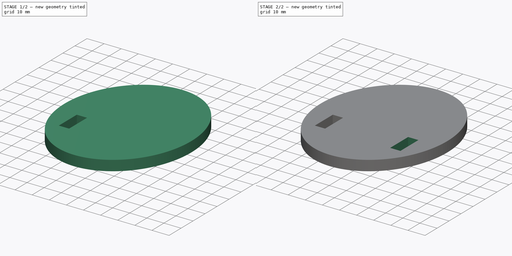
[diagram: build sequence overview — one tinted view per stage of 2, left to right]
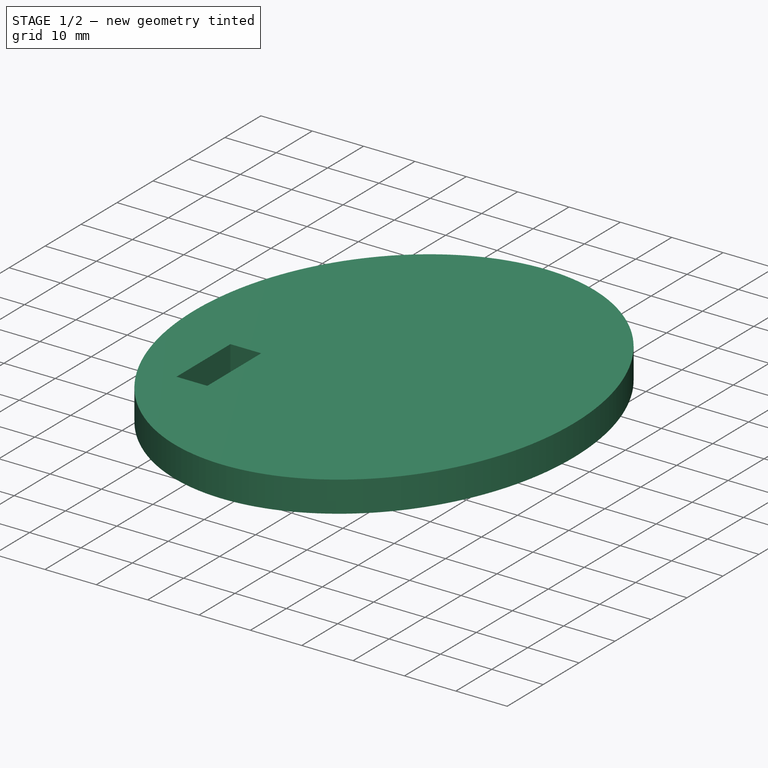
[diagram: stage 1 of 2 — iso view after this stage's code; geometry added in this stage tinted green]
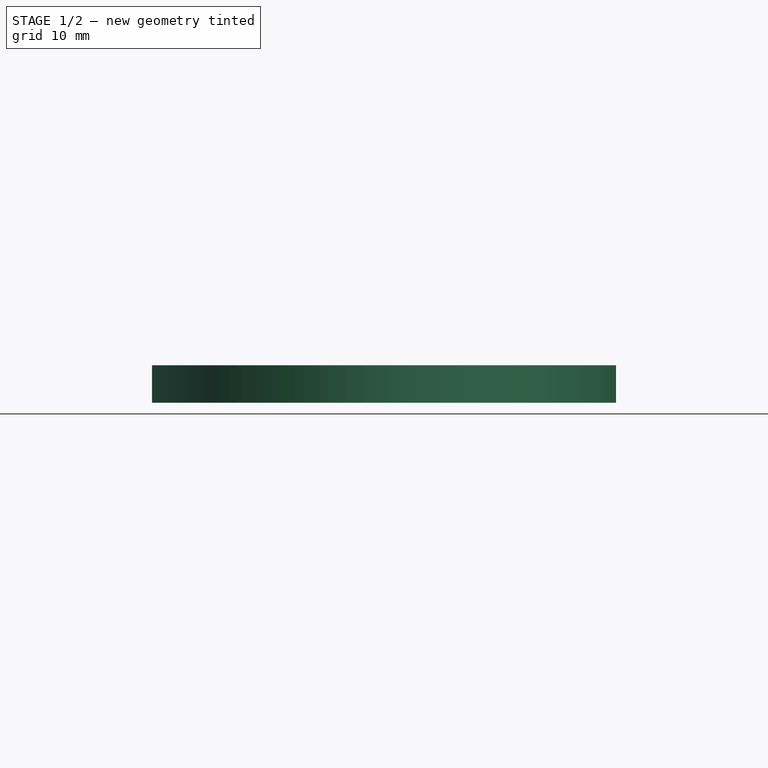
[diagram: stage 1 of 2 — front view after this stage's code; geometry added in this stage tinted green]
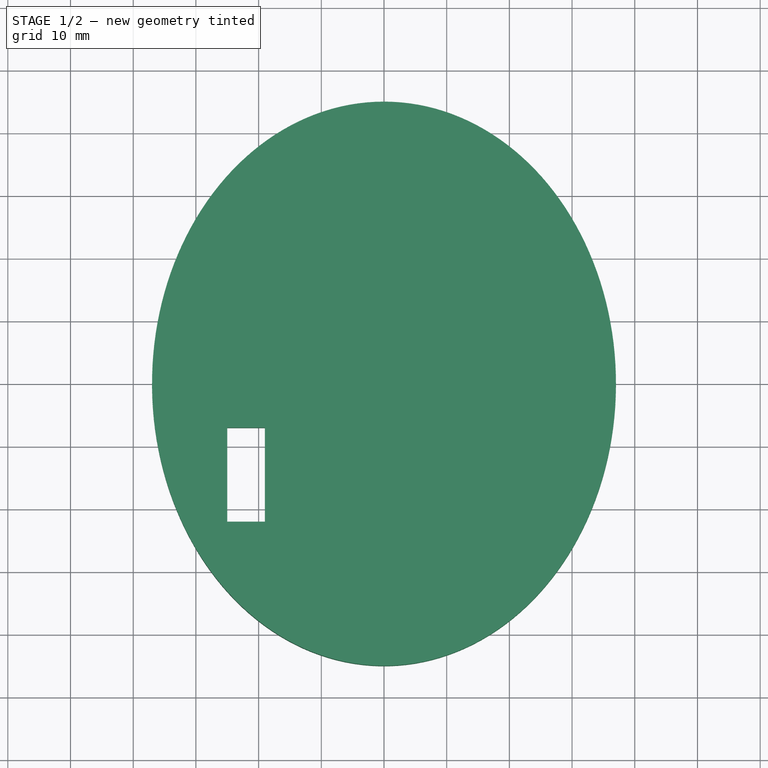
[diagram: stage 1 of 2 — top view after this stage's code; geometry added in this stage tinted green]
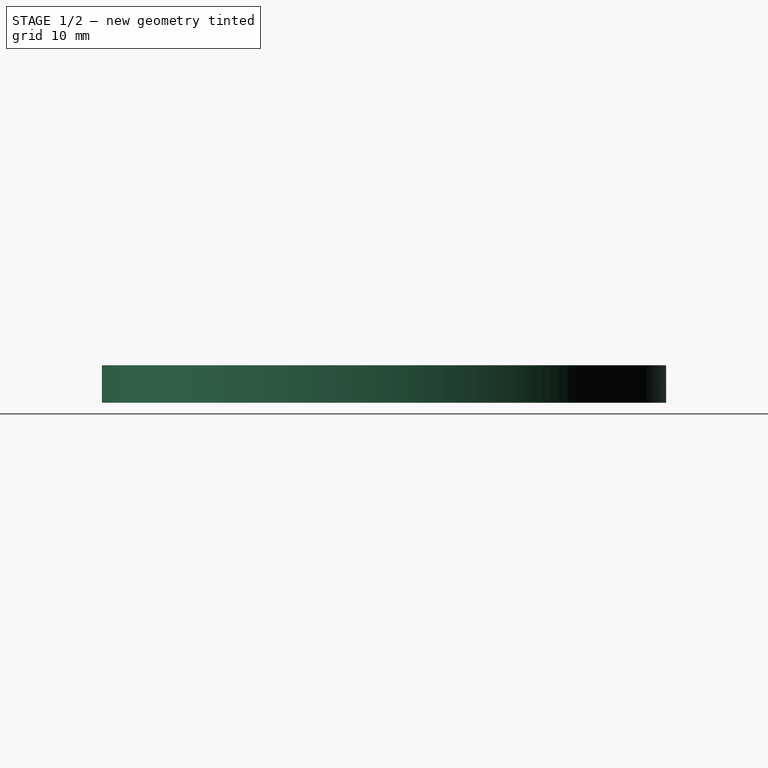
[diagram: stage 1 of 2 — right view after this stage's code; geometry added in this stage tinted green]
FCSTD DOCUMENT  (FreeCAD 0.19R24291 (Git))
Label: Base-Plate-Lidar
License: All rights reserved
LicenseURL: http://en.wikipedia.org/wiki/All_rights_reserved
objects: Sketcher::SketchObject×2, PartDesign::Pad×1, PartDesign::Pocket×1, PartDesign::Mirrored×1, PartDesign::Body×1
note: 8 computed .brp shape members not serialized (recipe doc carries the construction recipe); baked Part::Feature solids carry a one-line shape summary decoded from their .brp

FEATURE [Sketcher::SketchObject] Sketch
  FullyConstrained = true
  MapMode = 5
  Support = -> [XY_Plane]
  sketch-geometry (14):
    g0: LineSegment StartX=-50 StartY=-50 StartZ=0 EndX=50 EndY=-50 EndZ=0
    g1: LineSegment StartX=50 StartY=-50 StartZ=0 EndX=50 EndY=50 EndZ=0
    g2: LineSegment StartX=50 StartY=50 StartZ=0 EndX=-50 EndY=50 EndZ=0
    g3: LineSegment StartX=-50 StartY=50 StartZ=0 EndX=-50 EndY=-50 EndZ=0
    g4: LineSegment StartX=-50 StartY=50 StartZ=0 EndX=50 EndY=-50 EndZ=0
    g5: LineSegment StartX=-50 StartY=-50 StartZ=0 EndX=50 EndY=50 EndZ=0
    g6: LineSegment StartX=-40 StartY=50 StartZ=0 EndX=-40 EndY=-50 EndZ=0
    g7: LineSegment StartX=40 StartY=50 StartZ=0 EndX=40 EndY=-50 EndZ=0
    g8: Ellipse CenterX=0 CenterY=0 CenterZ=0 NormalX=0 NormalY=0 NormalZ=1 MajorRadius=45 MinorRadius=37 AngleXU=1.5708
    g9: LineSegment StartX=0 StartY=45 StartZ=0 EndX=0 EndY=-45 EndZ=0
    g10: LineSegment StartX=-37 StartY=0 StartZ=0 EndX=37 EndY=0 EndZ=0
    g11: GeomPoint X=0 Y=25.6125 Z=0
    g12: GeomPoint X=0 Y=-25.6125 Z=0
    g13: GeomPoint X=-40 Y=0 Z=0
  constraints (31):
    c: Coincident(g0,g1)
    c: Coincident(g1,g2)
    c: Coincident(g2,g3)
    c: Coincident(g3,g0)
    c: Horizontal(g0)
    c: Horizontal(g2)
    c: Vertical(g1)
    c: Vertical(g3)
    c: Coincident(g4,g2)
    c: Coincident(g4,g0)
    c: Coincident(g5,g0)
    c: Coincident(g5,g1)
    c: PointOnObject(g-1,g5)
    c: PointOnObject(g-1,g4)
    c: DistanceY(g1,g1) = 100
    c: DistanceX(g0,g0) = 100
    c: PointOnObject(g6,g2)
    c: PointOnObject(g6,g0)
    c: Vertical(g6)
    c: DistanceX(g2,g6) = 10
    c: Vertical(g7)
    c: DistanceX(g7,g1) = 10
    c: PointOnObject(g7,g2)
    c: PointOnObject(g7,g0)
    c: InternalAlignment(g9-g12 -> g8) x4
    c: Coincident(g8,g-1)
    c: PointOnObject(g13,g6)
    c: PointOnObject(g13,g-1)
    c: DistanceX(g13,g10) = 3
    c: PointOnObject(g10,g-1)
    c: DistanceY(g9,g6) = 5
FEATURE [PartDesign::Pad] Pad  label="Base"
  Direction = (1,1,1)
  Length = 6
  Length2 = 100
  Profile = -> Sketch
  Type = 0
FEATURE [Sketcher::SketchObject] Sketch001
  FullyConstrained = true
  MapMode = 5
  Placement = pos=(0,0,6) rot=(0,0,1;0rad)
  Support = -> [Pad]
  sketch-geometry (4):
    g0: LineSegment StartX=-25 StartY=-7 StartZ=0 EndX=-19 EndY=-7 EndZ=0
    g1: LineSegment StartX=-19 StartY=-7 StartZ=0 EndX=-19 EndY=-22 EndZ=0
    g2: LineSegment StartX=-19 StartY=-22 StartZ=0 EndX=-25 EndY=-22 EndZ=0
    g3: LineSegment StartX=-25 StartY=-22 StartZ=0 EndX=-25 EndY=-7 EndZ=0
  constraints (12):
    c: Coincident(g0,g1)
    c: Coincident(g1,g2)
    c: Coincident(g2,g3)
    c: Coincident(g3,g0)
    c: Horizontal(g0)
    c: Horizontal(g2)
    c: Vertical(g1)
    c: Vertical(g3)
    c: DistanceX(g2,g2) = 6
    c: DistanceY(g3,g3) = 15
    c: DistanceX(g0,g-1) = 19
    c: DistanceY(g0,g-1) = 7
FEATURE [PartDesign::Pocket] Pocket  label="Fixation-AX12"
  BaseFeature = -> Pad
  Length = 5
  Length2 = 100
  Profile = -> Sketch001
  Type = 1
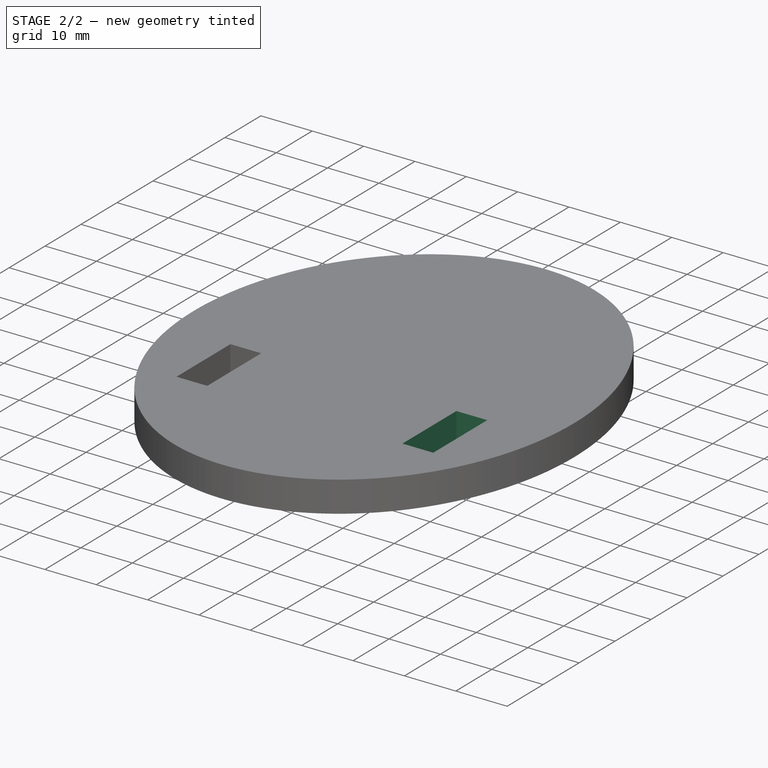
[diagram: stage 2 of 2 — iso view after this stage's code; geometry added in this stage tinted green]
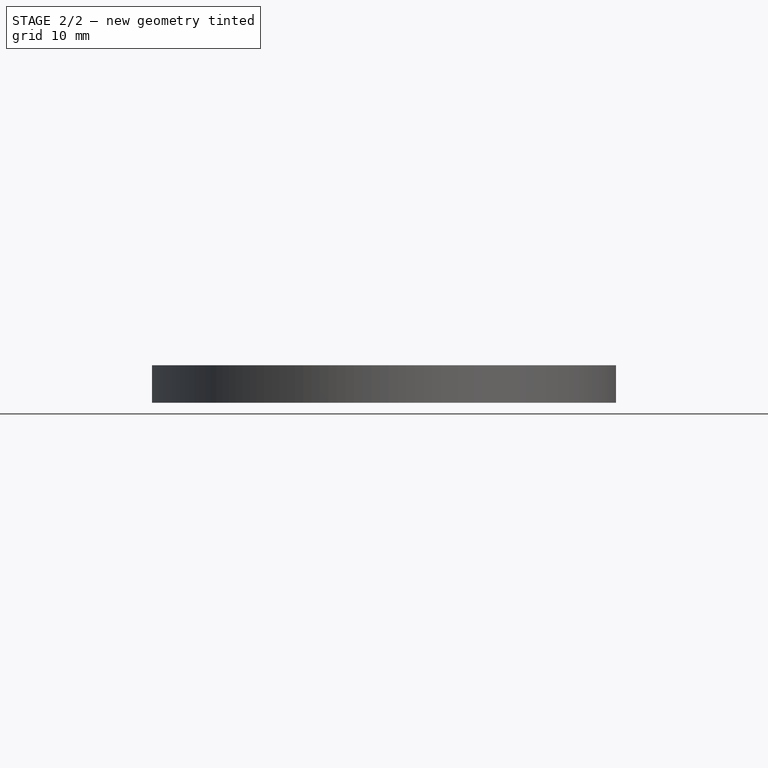
[diagram: stage 2 of 2 — front view after this stage's code; geometry added in this stage tinted green]
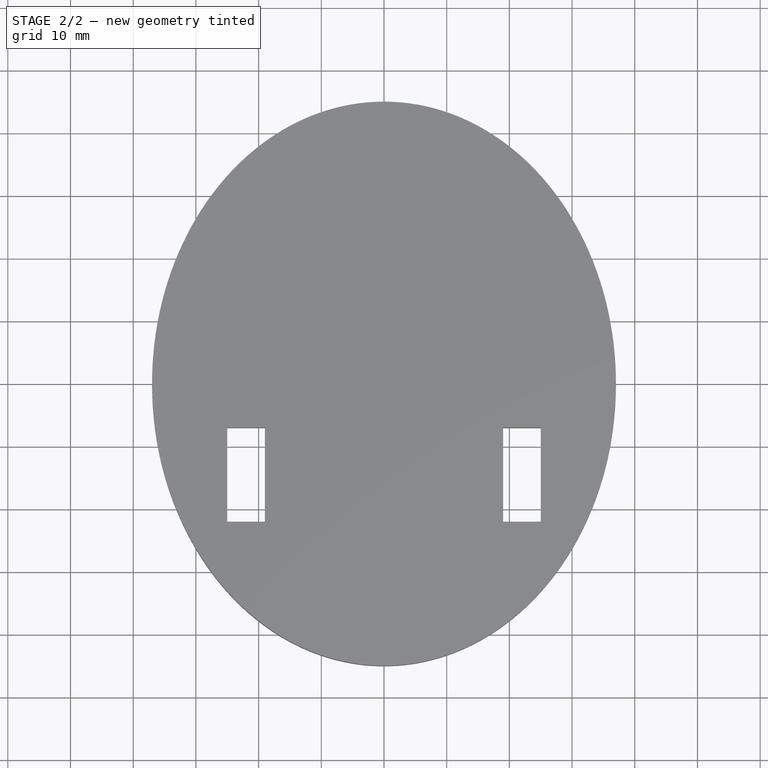
[diagram: stage 2 of 2 — top view after this stage's code; geometry added in this stage tinted green]
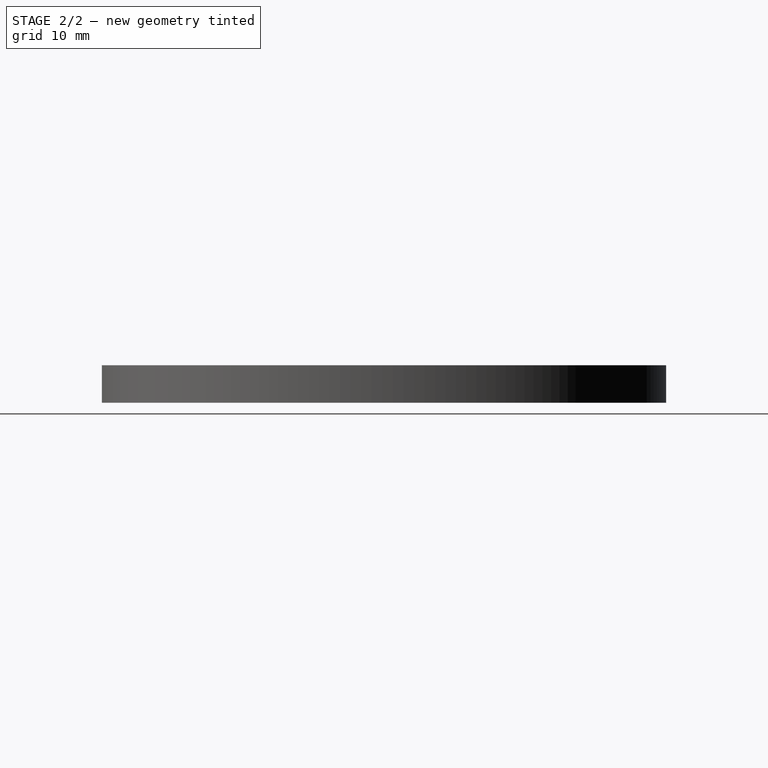
[diagram: stage 2 of 2 — right view after this stage's code; geometry added in this stage tinted green]
FEATURE [PartDesign::Mirrored] Mirrored  label="Fixation-AX12-2"
  BaseFeature = -> Pocket
  MirrorPlane = -> Sketch001 [V_Axis]
  Originals = -> [Pocket]
FEATURE [PartDesign::Body] Body
  Group = -> [Sketch,Pad,Sketch001,Pocket,Mirrored]
  Origin = -> Origin
  Tip = -> Mirrored
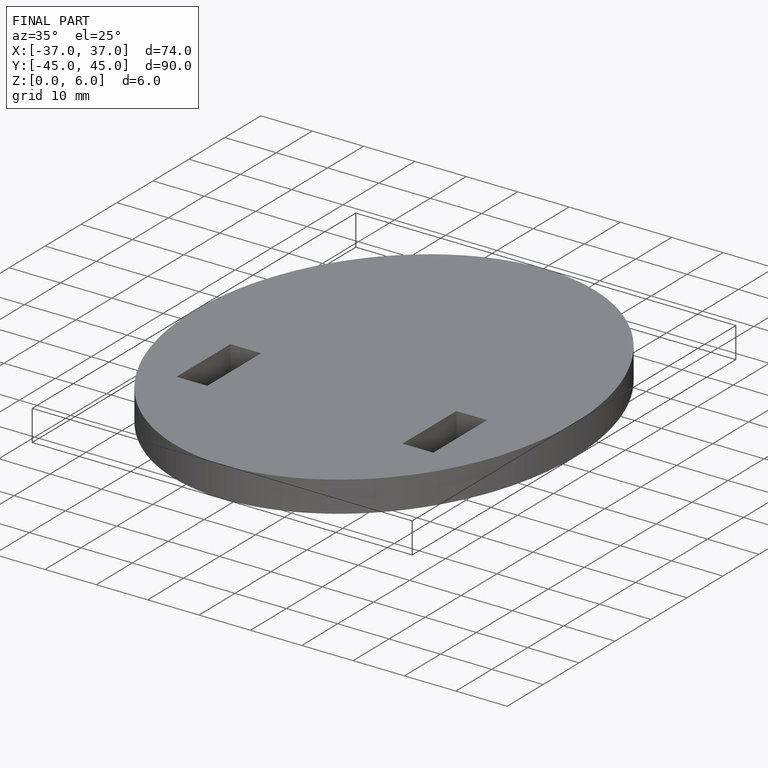
[diagram: finished part — iso view with bounding-box wireframe]
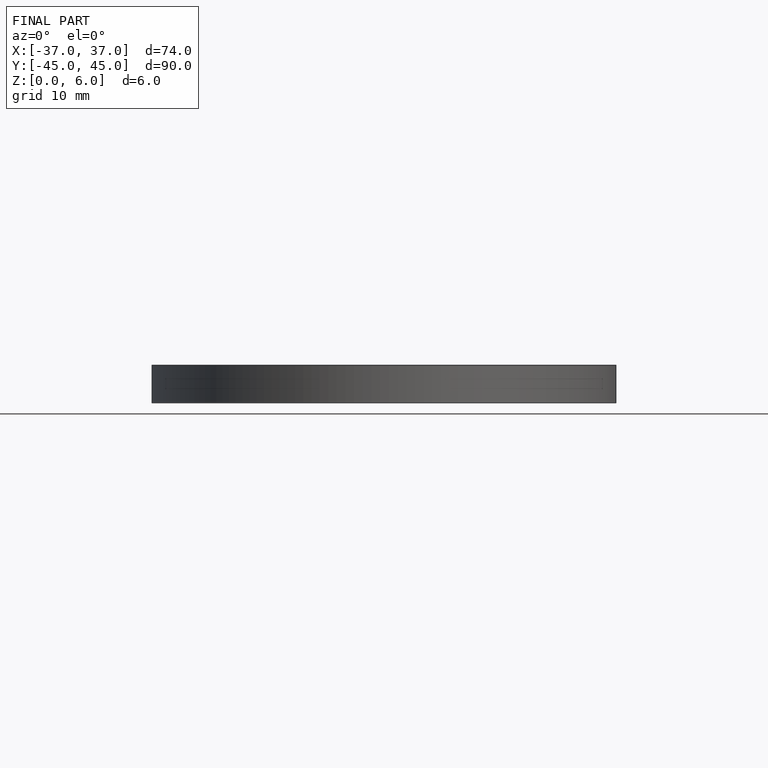
[diagram: finished part — front view with bounding-box wireframe]
